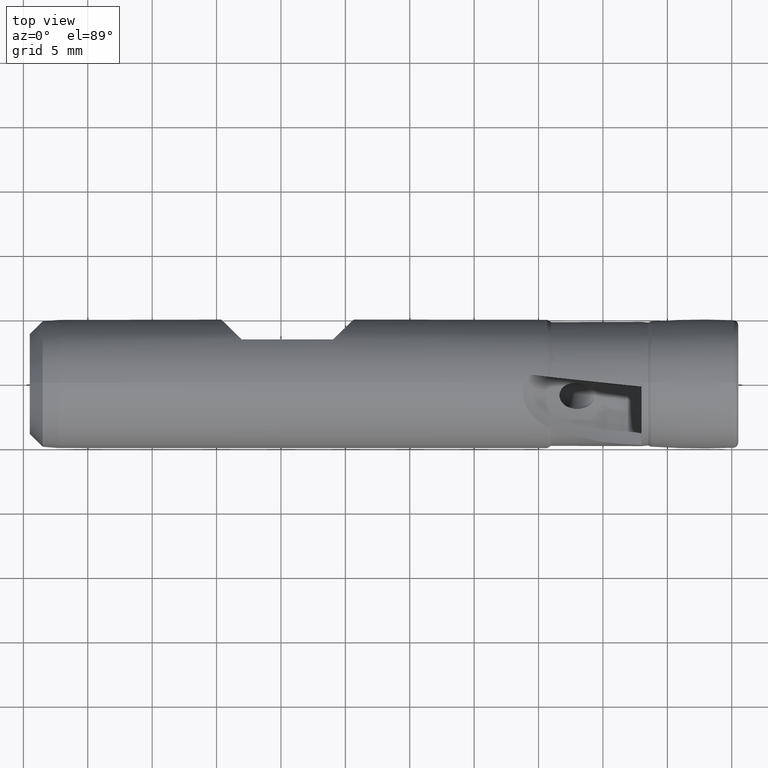
[diagram: clean part render]
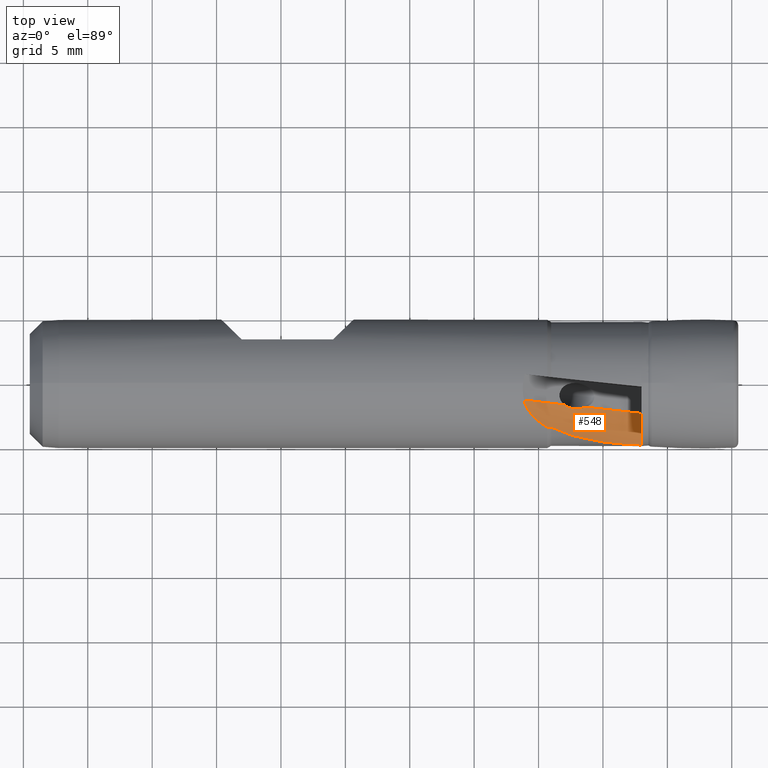
[diagram: same view with one face highlighted and labeled with its STEP entity id]
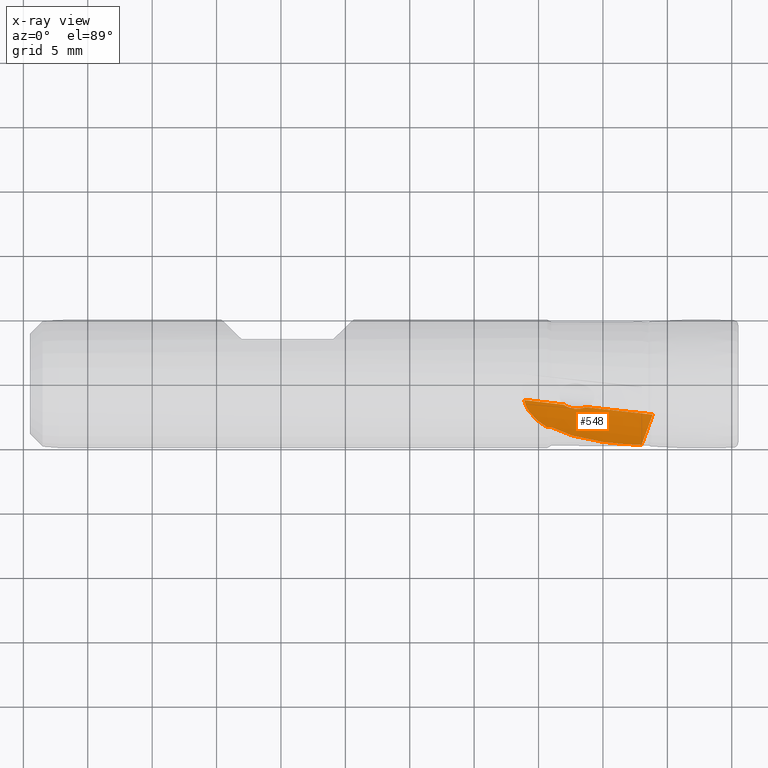
[diagram: x-ray of the same camera — body ghosted, the highlighted face saturated]
A machine part, top view. The second image highlights one B-rep face of the part: STEP entity #548.
The next image is the same camera in x-ray: the body ghosted, the highlighted face saturated — about 0% of this face is hidden behind the body in this view.
In plain terms, the highlighted toroidal blend (fillet) surface has major radius 13 mm and minor (blend) radius 7 mm.
Its self-contained STEP definition (entity closure, byte-faithful):
#33 = EDGE_LOOP ( 'NONE', ( #887, #888, #889, #890, #891, #892, #893 ) ) ;
#76 = CARTESIAN_POINT ( 'NONE',  ( -13.01692695382451800, -1.658445768495479200, 2.649224183411278000 ) ) ;
#77 = CARTESIAN_POINT ( 'NONE',  ( -11.32752142599441600, -1.836009444551878400, 1.801208645231765700 ) ) ;
#113 = VERTEX_POINT ( 'NONE', #76 ) ;
#114 = VERTEX_POINT ( 'NONE', #77 ) ;
#148 = VERTEX_POINT ( 'NONE', #974 ) ;
#154 = VERTEX_POINT ( 'NONE', #980 ) ;
#216 = VERTEX_POINT ( 'NONE', #1042 ) ;
#219 = VERTEX_POINT ( 'NONE', #1045 ) ;
#221 = VERTEX_POINT ( 'NONE', #1047 ) ;
#325 = B_SPLINE_CURVE_WITH_KNOTS ( 'NONE', 3,
 ( #1354, #1355, #1360, #1361, #1362, #1363, #1364, #1365 ),
 .UNSPECIFIED., .F., .F.,
 ( 4, 2, 2, 4 ),
 ( 2.466636345148879400E-007, 0.001911983700122366200, 0.003823720736610217300, 0.007647194809585922100 ),
 .UNSPECIFIED. ) ;
#343 = EDGE_CURVE ( 'NONE', #148, #154, #325, .T. ) ;
#447 = EDGE_CURVE ( 'NONE', #221, #113, #1342, .T. ) ;
#449 = EDGE_CURVE ( 'NONE', #114, #219, #1322, .T. ) ;
#451 = EDGE_CURVE ( 'NONE', #219, #154, #1177, .T. ) ;
#452 = EDGE_CURVE ( 'NONE', #216, #221, #1176, .T. ) ;
#453 = EDGE_CURVE ( 'NONE', #216, #148, #2216, .T. ) ;
#548 = ADVANCED_FACE ( 'NONE', ( #2176 ), #662, .F. ) ;
#594 = EDGE_CURVE ( 'NONE', #114, #113, #597, .T. ) ;
#597 = B_SPLINE_CURVE_WITH_KNOTS ( 'NONE', 3,
 ( #2198, #2194, #2200, #2201, #2202, #2203, #2204, #2205, #2206, #2207 ),
 .UNSPECIFIED., .F., .F.,
 ( 4, 2, 2, 2, 4 ),
 ( 0.0008468922558180428800, 0.001338514509551085400, 0.001830136763284127700, 0.002321759017017170300, 0.002813381270750212400 ),
 .UNSPECIFIED. ) ;
#640 = AXIS2_PLACEMENT_3D ( 'NONE', #2177, #2173, #2179 ) ;
#662 = TOROIDAL_SURFACE ( 'NONE', #640, 13.00000000000000200, 7.000000000000000000 ) ;
#887 = ORIENTED_EDGE ( 'NONE', *, *, #451, .F. ) ;
#888 = ORIENTED_EDGE ( 'NONE', *, *, #449, .F. ) ;
#889 = ORIENTED_EDGE ( 'NONE', *, *, #594, .T. ) ;
#890 = ORIENTED_EDGE ( 'NONE', *, *, #447, .F. ) ;
#891 = ORIENTED_EDGE ( 'NONE', *, *, #452, .F. ) ;
#892 = ORIENTED_EDGE ( 'NONE', *, *, #453, .T. ) ;
#893 = ORIENTED_EDGE ( 'NONE', *, *, #343, .T. ) ;
#974 = CARTESIAN_POINT ( 'NONE',  ( -14.02801615493746800, -3.400176573672003300, 3.426887146938475400 ) ) ;
#980 = CARTESIAN_POINT ( 'NONE',  ( -6.999999999999995600, -4.751992394558641300, 0.8504848805574581900 ) ) ;
#1042 = CARTESIAN_POINT ( 'NONE',  ( -14.32679491924310800, -3.430299077992441600, 3.637725695475704200 ) ) ;
#1045 = CARTESIAN_POINT ( 'NONE',  ( -6.139378685177725000, -2.381305219774267900, 0.3043231616790750800 ) ) ;
#1047 = CARTESIAN_POINT ( 'NONE',  ( -16.13224354872516000, -1.331012800178033500, 4.819585555393968200 ) ) ;
#1111 = CARTESIAN_POINT ( 'NONE',  ( -6.999999999999995600, -4.751992394558641300, 0.8504848805574581900 ) ) ;
#1112 = CARTESIAN_POINT ( 'NONE',  ( -14.22753370946424800, -3.422068266681317400, 3.566717513962971400 ) ) ;
#1113 = CARTESIAN_POINT ( 'NONE',  ( -14.32679491924310800, -3.430299077992441600, 3.637725695475704200 ) ) ;
#1114 = CARTESIAN_POINT ( 'NONE',  ( -14.72365862748845400, -3.188104515926026000, 3.855813033448061600 ) ) ;
#1115 = CARTESIAN_POINT ( 'NONE',  ( -15.09460263889684100, -2.907586568762889500, 4.071516289851424600 ) ) ;
#1116 = CARTESIAN_POINT ( 'NONE',  ( -15.27196565482436200, -2.752474414805122100, 4.179036106910115400 ) ) ;
#1117 = CARTESIAN_POINT ( 'NONE',  ( -15.59574482208665600, -2.407891037067699800, 4.386629565010511400 ) ) ;
#1118 = CARTESIAN_POINT ( 'NONE',  ( -15.74085305431470500, -2.220458893502598800, 4.485731756782586300 ) ) ;
#1119 = CARTESIAN_POINT ( 'NONE',  ( -15.98332555359155400, -1.802001487320425300, 4.669584321033034300 ) ) ;
#1120 = CARTESIAN_POINT ( 'NONE',  ( -16.07772581079669600, -1.574734430628748700, 4.752277566754363700 ) ) ;
#1121 = CARTESIAN_POINT ( 'NONE',  ( -16.13224354872516000, -1.331012800178033500, 4.819585555393968200 ) ) ;
#1124 = CARTESIAN_POINT ( 'NONE',  ( -14.12795096358851600, -3.412008752235927900, 3.496426246782537100 ) ) ;
#1125 = CARTESIAN_POINT ( 'NONE',  ( -14.02801615493746800, -3.400176573672003300, 3.426887146938475400 ) ) ;
#1176 = B_SPLINE_CURVE_WITH_KNOTS ( 'NONE', 3,
 ( #1791, #1790, #1114, #1115, #1116, #1117, #1118, #1119, #1120, #1121 ),
 .UNSPECIFIED., .F., .F.,
 ( 4, 2, 2, 2, 4 ),
 ( 0.0002621934704669767100, 0.001030916226422725200, 0.001799638982378473800, 0.002568361738334218800, 0.003337084494289963700 ),
 .UNSPECIFIED. ) ;
#1177 = B_SPLINE_CURVE_WITH_KNOTS ( 'NONE', 3,
 ( #1763, #1787, #1792, #1793, #1794, #1111 ),
 .UNSPECIFIED., .F., .F.,
 ( 4, 2, 4 ),
 ( 0.001092637481637478000, 0.002392509087442820500, 0.003692380693248162300 ),
 .UNSPECIFIED. ) ;
#1258 = AXIS2_PLACEMENT_3D ( 'NONE', #1784, #1785, #1786 ) ;
#1295 = AXIS2_PLACEMENT_3D ( 'NONE', #1760, #1761, #1762 ) ;
#1322 = CIRCLE ( 'NONE', #1258, 20.00000000000000000 ) ;
#1342 = CIRCLE ( 'NONE', #1295, 20.00000000000000000 ) ;
#1354 = CARTESIAN_POINT ( 'NONE',  ( -14.02801615493746800, -3.400176573672003300, 3.426887146938475400 ) ) ;
#1355 = CARTESIAN_POINT ( 'NONE',  ( -13.51132051541709000, -3.676160300696742000, 3.153054551026305100 ) ) ;
#1360 = CARTESIAN_POINT ( 'NONE',  ( -12.96787770731833000, -3.880113901824203500, 2.887977079915824900 ) ) ;
#1361 = CARTESIAN_POINT ( 'NONE',  ( -11.84485547812217400, -4.209356193114274400, 2.382648934429718600 ) ) ;
#1362 = CARTESIAN_POINT ( 'NONE',  ( -11.26310572359901000, -4.333146364677537200, 2.141813808875392900 ) ) ;
#1363 = CARTESIAN_POINT ( 'NONE',  ( -9.479951037505353300, -4.622299804193018800, 1.474507039178501800 ) ) ;
#1364 = CARTESIAN_POINT ( 'NONE',  ( -8.257579823668745400, -4.705743208686592500, 1.108897210444561100 ) ) ;
#1365 = CARTESIAN_POINT ( 'NONE',  ( -6.999999999999995600, -4.751992394558641300, 0.8504848805574581900 ) ) ;
#1760 = CARTESIAN_POINT ( 'NONE',  ( -3.298196360540421400, -2.679925515255728200, 20.09923434908517600 ) ) ;
#1761 = DIRECTION ( 'NONE',  ( -0.1045284632676401500, -0.9945218953682748400, -6.944709277498469300E-015 ) ) ;
#1762 = DIRECTION ( 'NONE',  ( -0.9945218953682747300, 0.1045284632676401600, 6.938893903907228400E-016 ) ) ;
#1763 = CARTESIAN_POINT ( 'NONE',  ( -6.139378685177725000, -2.381305219774267900, 0.3043231616790750800 ) ) ;
#1784 = CARTESIAN_POINT ( 'NONE',  ( -3.298196360540421400, -2.679925515255728200, 20.09923434908517600 ) ) ;
#1785 = DIRECTION ( 'NONE',  ( -0.1045284632676401500, -0.9945218953682748400, -6.944709277498469300E-015 ) ) ;
#1786 = DIRECTION ( 'NONE',  ( -0.9945218953682747300, 0.1045284632676401600, 6.938893903907228400E-016 ) ) ;
#1787 = CARTESIAN_POINT ( 'NONE',  ( -6.283861940326323400, -2.790178705465882600, 0.3188928329896817400 ) ) ;
#1790 = CARTESIAN_POINT ( 'NONE',  ( -14.52890922734718300, -3.314498357538239000, 3.746923347487079300 ) ) ;
#1791 = CARTESIAN_POINT ( 'NONE',  ( -14.32679491924310800, -3.430299077992441600, 3.637725695475704200 ) ) ;
#1792 = CARTESIAN_POINT ( 'NONE',  ( -6.429680707840545600, -3.197807212434659700, 0.3733595201567003200 ) ) ;
#1793 = CARTESIAN_POINT ( 'NONE',  ( -6.716183961445138600, -3.988796608099232500, 0.5561207784718326100 ) ) ;
#1794 = CARTESIAN_POINT ( 'NONE',  ( -6.858111937849887600, -4.375245370769248700, 0.6844592599836648600 ) ) ;
#2173 = DIRECTION ( 'NONE',  ( -0.1045284632676401500, -0.9945218953682748400, -6.944709277498469300E-015 ) ) ;
#2176 = FACE_OUTER_BOUND ( 'NONE', #33, .T. ) ;
#2177 = CARTESIAN_POINT ( 'NONE',  ( -3.298196360540421400, -2.679925515255728200, 20.09923434908517600 ) ) ;
#2179 = DIRECTION ( 'NONE',  ( -0.9945218953682747300, 0.1045284632676401300, 6.938893903907226400E-016 ) ) ;
#2194 = CARTESIAN_POINT ( 'NONE',  ( -11.46955192699153700, -1.895429055303549800, 1.860792335567120500 ) ) ;
#2198 = CARTESIAN_POINT ( 'NONE',  ( -11.32752142599441600, -1.836009444551878400, 1.801208645231765700 ) ) ;
#2200 = CARTESIAN_POINT ( 'NONE',  ( -11.61568035316073400, -1.934260727037443500, 1.926114100717383000 ) ) ;
#2201 = CARTESIAN_POINT ( 'NONE',  ( -11.90936031987365100, -1.977202081802803500, 2.062937098721255400 ) ) ;
#2202 = CARTESIAN_POINT ( 'NONE',  ( -12.05937588664191800, -1.981178793061061400, 2.135670966368070600 ) ) ;
#2203 = CARTESIAN_POINT ( 'NONE',  ( -12.35069190724474100, -1.954244848403183100, 2.281860740612629900 ) ) ;
#2204 = CARTESIAN_POINT ( 'NONE',  ( -12.49319493824434500, -1.923958840132875800, 2.355814090471218600 ) ) ;
#2205 = CARTESIAN_POINT ( 'NONE',  ( -12.77059560945506600, -1.822487752904849300, 2.505678092105281300 ) ) ;
#2206 = CARTESIAN_POINT ( 'NONE',  ( -12.90055014562058100, -1.753539878659258000, 2.578841900412680600 ) ) ;
#2207 = CARTESIAN_POINT ( 'NONE',  ( -13.01692695382451800, -1.658445768495479200, 2.649224183411278000 ) ) ;
#2216 = B_SPLINE_CURVE_WITH_KNOTS ( 'NONE', 3,
 ( #1113, #1112, #1124, #1125 ),
 .UNSPECIFIED., .F., .F.,
 ( 4, 4 ),
 ( 2.464333304494317900E-007, 0.0003671646923689181200 ),
 .UNSPECIFIED. ) ;